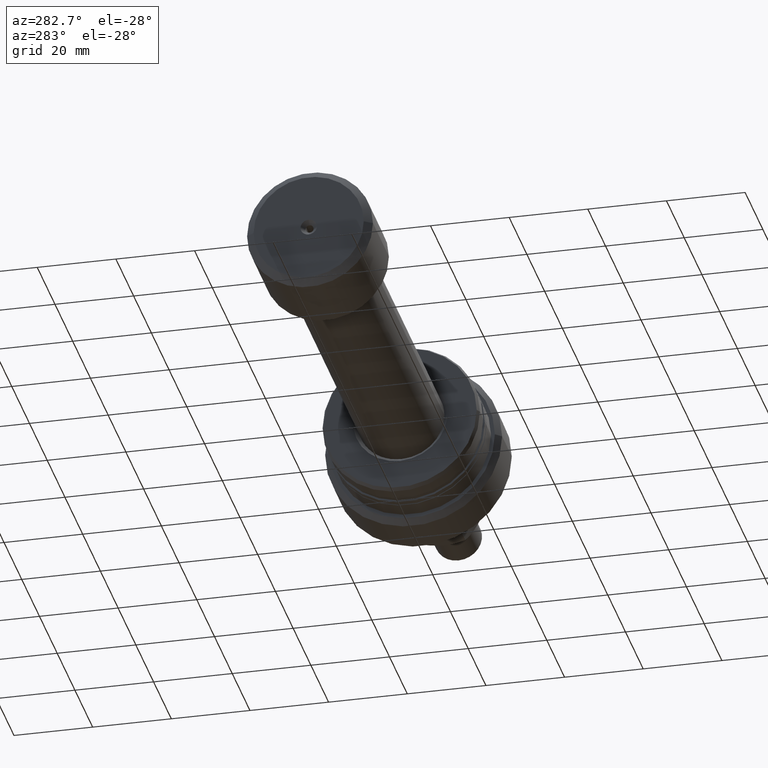
[diagram: clean part render]
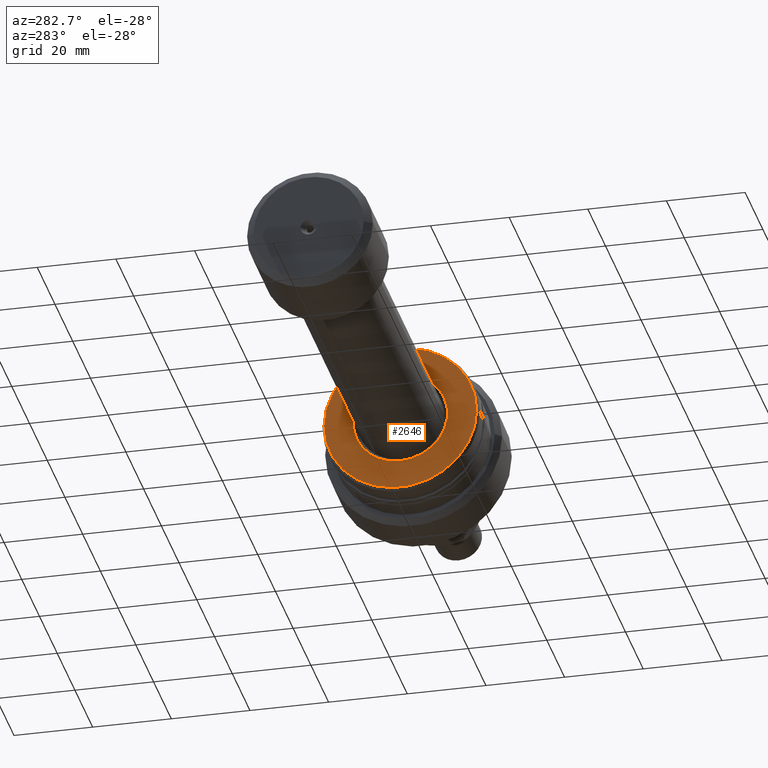
[diagram: same view with one face highlighted and labeled with its STEP entity id]
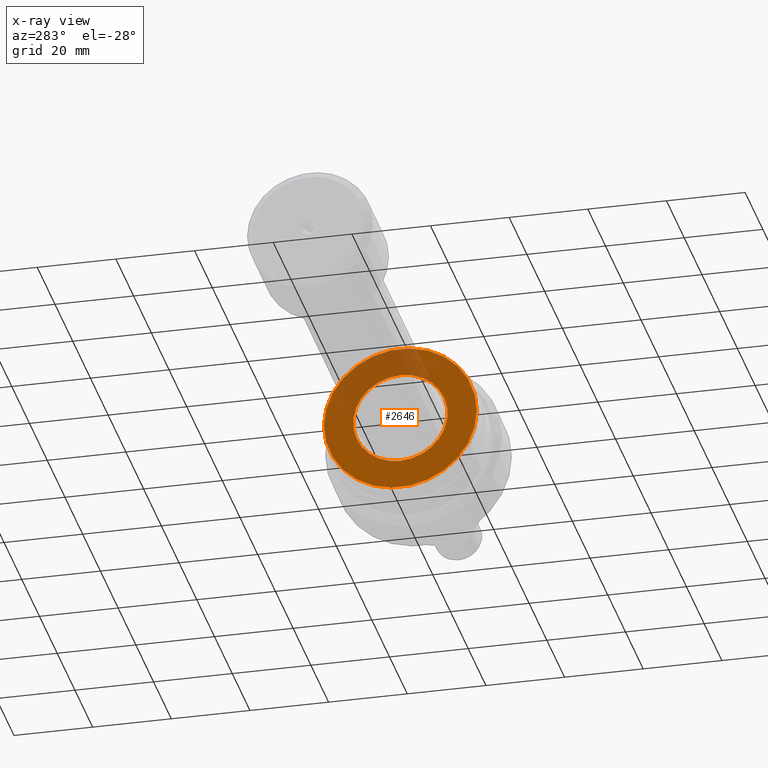
[diagram: x-ray of the same camera — body ghosted, the highlighted face saturated]
A machine part, auxiliary view. The second image highlights one B-rep face of the part: STEP entity #2646.
The next image is the same camera in x-ray: the body ghosted, the highlighted face saturated — about 25% of this face is hidden behind the body in this view.
In plain terms, the highlighted planar face has unit normal (-1, 0, 0).
Its self-contained STEP definition (entity closure, byte-faithful):
#134 = ORIENTED_EDGE ( 'NONE', *, *, #2758, .T. ) ;
#249 = CARTESIAN_POINT ( 'NONE',  ( -27.49999999999998224, 1.469576158976822567E-15, -11.99999999999998934 ) ) ;
#325 = CARTESIAN_POINT ( 'NONE',  ( -27.49999999999996803, -3.708233295962692034E-15, 0.000000000000000000 ) ) ;
#433 = AXIS2_PLACEMENT_3D ( 'NONE', #325, #2194, #2823 ) ;
#506 = CARTESIAN_POINT ( 'NONE',  ( -27.49999999999998224, 0.000000000000000000, 11.99999999999998934 ) ) ;
#521 = FACE_OUTER_BOUND ( 'NONE', #609, .T. ) ;
#609 = EDGE_LOOP ( 'NONE', ( #1216, #134 ) ) ;
#785 = VERTEX_POINT ( 'NONE', #2767 ) ;
#819 = CIRCLE ( 'NONE', #433, 19.42264973081047685 ) ;
#964 = DIRECTION ( 'NONE',  ( -1.445602896647338522E-15, -1.000000000000000000, 0.000000000000000000 ) ) ;
#1204 = DIRECTION ( 'NONE',  ( -1.000000000000000000, 1.333885945136072597E-15, 0.000000000000000000 ) ) ;
#1216 = ORIENTED_EDGE ( 'NONE', *, *, #2396, .T. ) ;
#1411 = DIRECTION ( 'NONE',  ( 1.000000000000000000, -1.333885945136072597E-15, 0.000000000000000000 ) ) ;
#1456 = CIRCLE ( 'NONE', #3018, 19.42264973081047685 ) ;
#1753 = PLANE ( 'NONE',  #2968 ) ;
#1821 = CARTESIAN_POINT ( 'NONE',  ( -27.49999999999996803, -3.708233295962692034E-15, 0.000000000000000000 ) ) ;
#1921 = VERTEX_POINT ( 'NONE', #506 ) ;
#2131 = DIRECTION ( 'NONE',  ( 1.000000000000000000, -1.333885945136072597E-15, 0.000000000000000000 ) ) ;
#2194 = DIRECTION ( 'NONE',  ( -1.000000000000000000, 1.333885945136072597E-15, -0.000000000000000000 ) ) ;
#2368 = VERTEX_POINT ( 'NONE', #249 ) ;
#2396 = EDGE_CURVE ( 'NONE', #2844, #785, #1456, .T. ) ;
#2554 = EDGE_CURVE ( 'NONE', #1921, #2368, #3874, .T. ) ;
#2638 = DIRECTION ( 'NONE',  ( -1.445602896647338522E-15, -1.000000000000000000, 0.000000000000000000 ) ) ;
#2646 = ADVANCED_FACE ( 'NONE', ( #3692, #521 ), #1753, .T. ) ;
#2758 = EDGE_CURVE ( 'NONE', #785, #2844, #819, .T. ) ;
#2767 = CARTESIAN_POINT ( 'NONE',  ( -27.49999999999999289, -19.42264973081048041, 2.413941090337216083E-15 ) ) ;
#2823 = DIRECTION ( 'NONE',  ( -1.250402442523061283E-15, -1.000000000000000000, 0.000000000000000000 ) ) ;
#2841 = CARTESIAN_POINT ( 'NONE',  ( -27.49999999999994316, 19.42264973081047330, 0.000000000000000000 ) ) ;
#2844 = VERTEX_POINT ( 'NONE', #2841 ) ;
#2922 = AXIS2_PLACEMENT_3D ( 'NONE', #3781, #2131, #964 ) ;
#2968 = AXIS2_PLACEMENT_3D ( 'NONE', #2998, #1204, #3951 ) ;
#2977 = CARTESIAN_POINT ( 'NONE',  ( -27.49999999999998224, 0.000000000000000000, 0.000000000000000000 ) ) ;
#2998 = CARTESIAN_POINT ( 'NONE',  ( -27.49999999999998224, -3.708233295962674679E-15, 0.000000000000000000 ) ) ;
#3018 = AXIS2_PLACEMENT_3D ( 'NONE', #1821, #3370, #3063 ) ;
#3027 = AXIS2_PLACEMENT_3D ( 'NONE', #2977, #1411, #2638 ) ;
#3063 = DIRECTION ( 'NONE',  ( -1.250402442523061283E-15, -1.000000000000000000, 0.000000000000000000 ) ) ;
#3292 = EDGE_CURVE ( 'NONE', #2368, #1921, #3583, .T. ) ;
#3355 = EDGE_LOOP ( 'NONE', ( #3993, #4005 ) ) ;
#3370 = DIRECTION ( 'NONE',  ( -1.000000000000000000, 1.333885945136072597E-15, -0.000000000000000000 ) ) ;
#3583 = CIRCLE ( 'NONE', #2922, 12.00000000000000533 ) ;
#3692 = FACE_BOUND ( 'NONE', #3355, .T. ) ;
#3781 = CARTESIAN_POINT ( 'NONE',  ( -27.49999999999998224, 0.000000000000000000, 0.000000000000000000 ) ) ;
#3874 = CIRCLE ( 'NONE', #3027, 12.00000000000000533 ) ;
#3951 = DIRECTION ( 'NONE',  ( -1.333885945136072597E-15, -1.000000000000000000, 0.000000000000000000 ) ) ;
#3993 = ORIENTED_EDGE ( 'NONE', *, *, #2554, .T. ) ;
#4005 = ORIENTED_EDGE ( 'NONE', *, *, #3292, .T. ) ;